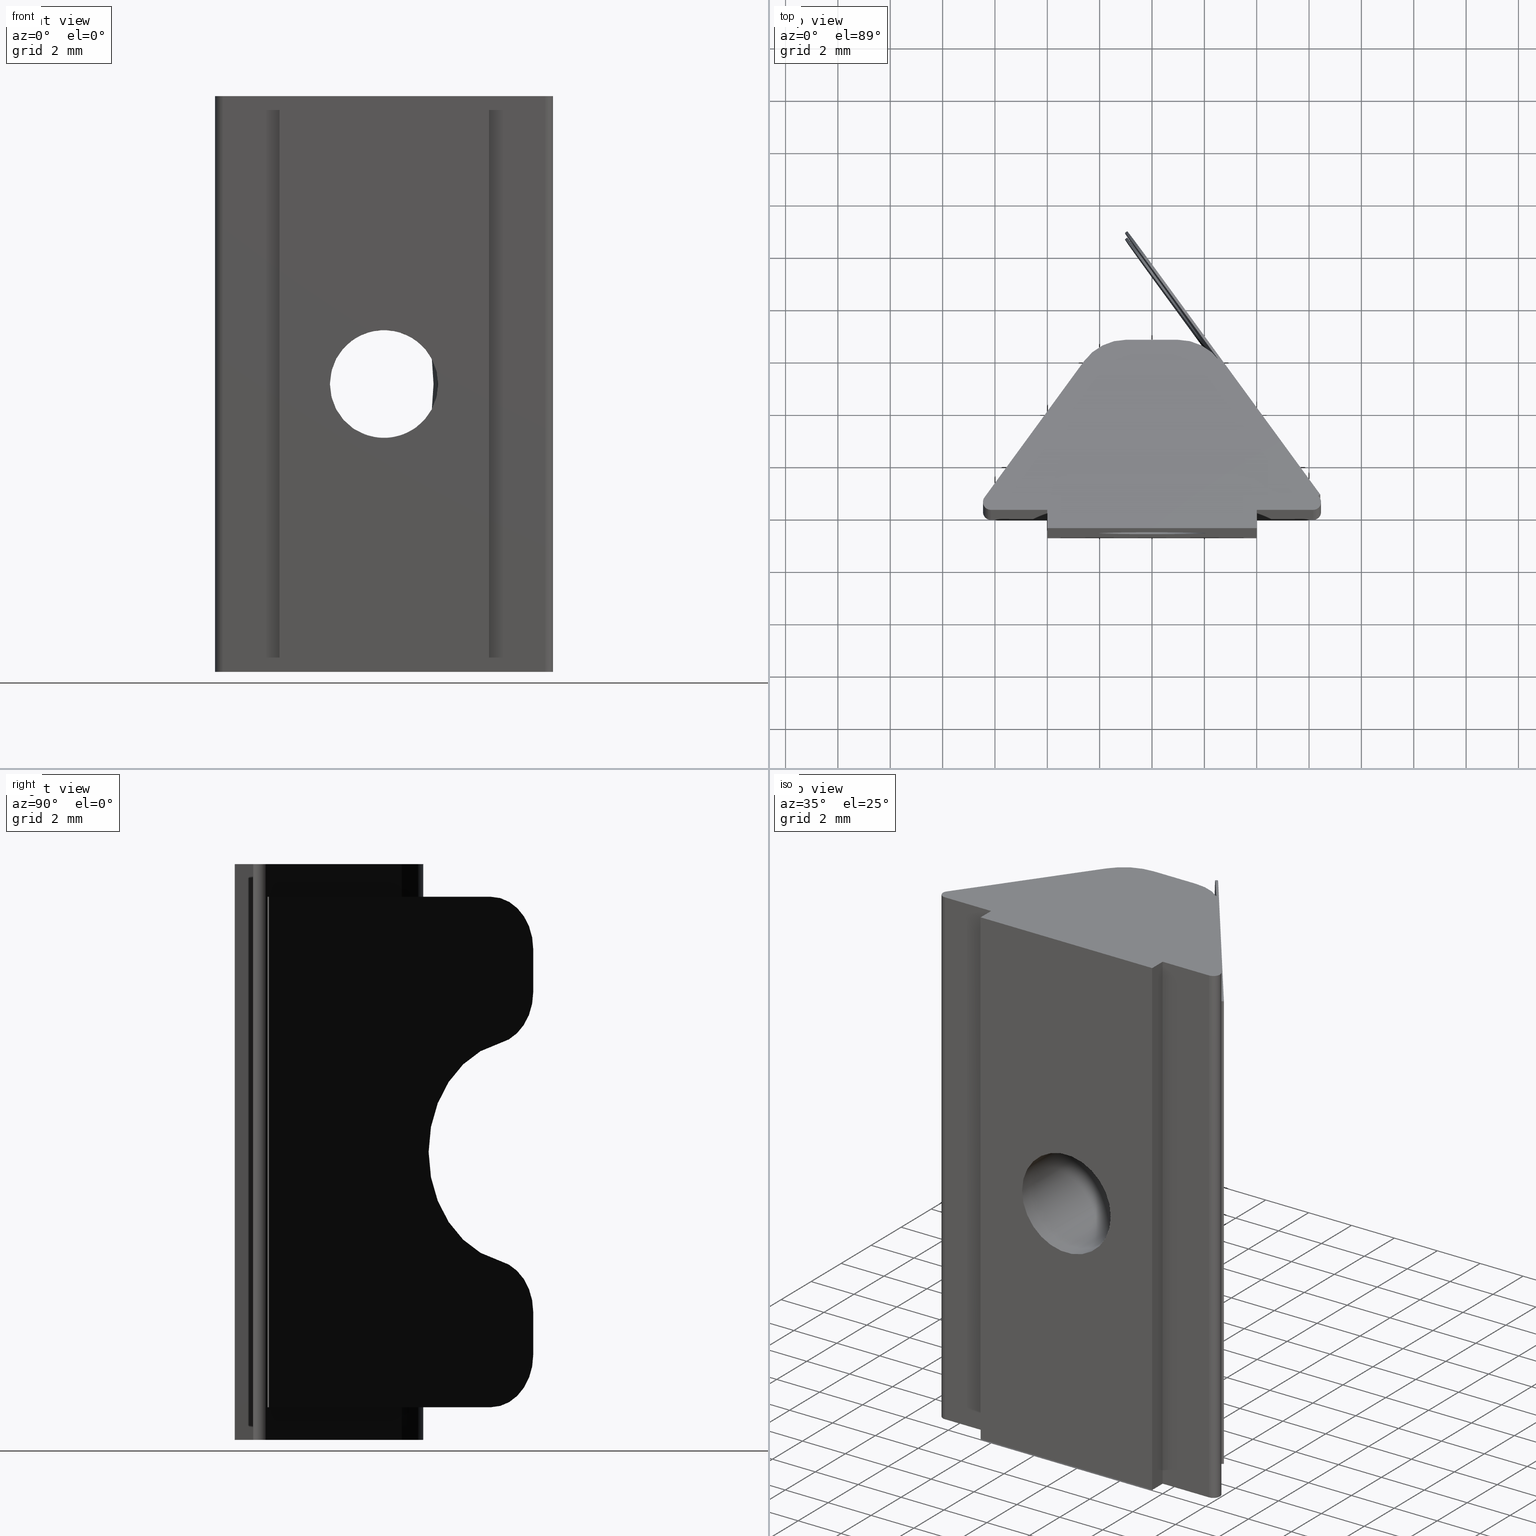
[diagram: canonical four-view strip — front | top / right | iso, engineering-drawing reading convention]
A machine part, canonical four-view strip (front | top / right | iso — engineering-drawing reading convention). The complete STEP part file that produces these views, byte-faithful:
ISO-10303-21;
HEADER;
/* Generated by software containing ST-Developer
 * from STEP Tools, Inc. (www.steptools.com) 
 */

FILE_DESCRIPTION(
/* description */ (' CURSORE M5 13.5X20 CAVA8 CON MOLLA'),
/* implementation_level */ '2;1');

FILE_NAME(
/* name */ 
'Q:\\Catalogo\\2_Accessori Dierre\\Per Download Web e catalogo cartace
o\\CATALOGO ELEMENTI ASSEMBLAGGIO\\PAGINA 11\\DDDCU0000068.stp',
/* time_stamp */ '2018-06-25T12:13:13+02:00',
/* author */ ('fzagni'),
/* organization */ (''),
/* preprocessor_version */ 'ST-DEVELOPER v16.1',
/* originating_system */ 'Autodesk Inventor 2016',
/* authorisation */ '');

FILE_SCHEMA (('AUTOMOTIVE_DESIGN { 1 0 10303 214 3 1 1 }'));
ENDSEC;

DATA;
#10=MECHANICAL_DESIGN_GEOMETRIC_PRESENTATION_REPRESENTATION('',(#13),#944);
#11=SHAPE_REPRESENTATION_RELATIONSHIP('SRR','None',#953,#12);
#12=ADVANCED_BREP_SHAPE_REPRESENTATION('',(#14),#943);
#13=STYLED_ITEM('',(#962),#14);
#14=MANIFOLD_SOLID_BREP('Solido1',#544);
#15=FACE_BOUND('',#87,.T.);
#16=FACE_BOUND('',#92,.T.);
#17=B_SPLINE_CURVE_WITH_KNOTS('',3,(#882,#883,#884,#885,#886,#887,#888,
#889,#890,#891,#892,#893,#894,#895,#896,#897,#898,#899,#900),
 .UNSPECIFIED.,.F.,.F.,(4,2,2,2,3,2,2,2,4),(1.86131742501699,1.8652302043375,
1.93290848191653,2.00436199081739,2.07581549971825,2.14726900861911,2.21872251751997,
2.286400795099,2.29031357441951),.UNSPECIFIED.);
#18=B_SPLINE_CURVE_WITH_KNOTS('',3,(#906,#907,#908,#909,#910,#911,#912,
#913,#914,#915,#916,#917,#918,#919,#920,#921,#922,#923),.UNSPECIFIED.,.F.,
 .F.,(4,2,2,2,2,2,2,2,4),(0.823409675157867,0.827322454478377,0.895000732057408,
0.966454240958267,1.03790774985913,1.10936125875998,1.18081476766084,1.24849304523987,
1.25240582456038),.UNSPECIFIED.);
#19=PLANE('',#549);
#20=PLANE('',#550);
#21=PLANE('',#561);
#22=PLANE('',#564);
#23=PLANE('',#565);
#24=PLANE('',#566);
#25=PLANE('',#567);
#26=PLANE('',#571);
#27=PLANE('',#572);
#28=PLANE('',#578);
#29=PLANE('',#579);
#30=PLANE('',#584);
#31=PLANE('',#589);
#32=PLANE('',#590);
#33=PLANE('',#591);
#34=PLANE('',#592);
#35=PLANE('',#593);
#36=PLANE('',#594);
#37=FACE_OUTER_BOUND('',#65,.T.);
#38=FACE_OUTER_BOUND('',#66,.T.);
#39=FACE_OUTER_BOUND('',#67,.T.);
#40=FACE_OUTER_BOUND('',#68,.T.);
#41=FACE_OUTER_BOUND('',#69,.T.);
#42=FACE_OUTER_BOUND('',#70,.T.);
#43=FACE_OUTER_BOUND('',#71,.T.);
#44=FACE_OUTER_BOUND('',#72,.T.);
#45=FACE_OUTER_BOUND('',#73,.T.);
#46=FACE_OUTER_BOUND('',#74,.T.);
#47=FACE_OUTER_BOUND('',#75,.T.);
#48=FACE_OUTER_BOUND('',#76,.T.);
#49=FACE_OUTER_BOUND('',#77,.T.);
#50=FACE_OUTER_BOUND('',#78,.T.);
#51=FACE_OUTER_BOUND('',#79,.T.);
#52=FACE_OUTER_BOUND('',#80,.T.);
#53=FACE_OUTER_BOUND('',#81,.T.);
#54=FACE_OUTER_BOUND('',#82,.T.);
#55=FACE_OUTER_BOUND('',#83,.T.);
#56=FACE_OUTER_BOUND('',#84,.T.);
#57=FACE_OUTER_BOUND('',#85,.T.);
#58=FACE_OUTER_BOUND('',#86,.T.);
#59=FACE_OUTER_BOUND('',#88,.T.);
#60=FACE_OUTER_BOUND('',#89,.T.);
#61=FACE_OUTER_BOUND('',#90,.T.);
#62=FACE_OUTER_BOUND('',#91,.T.);
#63=FACE_OUTER_BOUND('',#93,.T.);
#64=FACE_OUTER_BOUND('',#94,.T.);
#65=EDGE_LOOP('',(#352,#353,#354,#355));
#66=EDGE_LOOP('',(#356,#357,#358,#359));
#67=EDGE_LOOP('',(#360,#361,#362,#363,#364,#365,#366,#367,#368,#369));
#68=EDGE_LOOP('',(#370,#371,#372,#373));
#69=EDGE_LOOP('',(#374,#375,#376,#377));
#70=EDGE_LOOP('',(#378,#379,#380,#381));
#71=EDGE_LOOP('',(#382,#383,#384,#385));
#72=EDGE_LOOP('',(#386,#387,#388,#389));
#73=EDGE_LOOP('',(#390,#391,#392,#393,#394));
#74=EDGE_LOOP('',(#395,#396,#397,#398,#399));
#75=EDGE_LOOP('',(#400,#401,#402,#403));
#76=EDGE_LOOP('',(#404,#405,#406,#407,#408,#409,#410,#411,#412,#413));
#77=EDGE_LOOP('',(#414,#415,#416,#417));
#78=EDGE_LOOP('',(#418,#419,#420,#421,#422,#423,#424,#425));
#79=EDGE_LOOP('',(#426,#427,#428,#429,#430,#431,#432,#433,#434,#435,#436,
#437));
#80=EDGE_LOOP('',(#438,#439,#440,#441));
#81=EDGE_LOOP('',(#442,#443,#444,#445));
#82=EDGE_LOOP('',(#446,#447,#448,#449,#450,#451,#452,#453,#454,#455,#456,
#457));
#83=EDGE_LOOP('',(#458,#459,#460,#461,#462,#463));
#84=EDGE_LOOP('',(#464,#465,#466,#467,#468,#469,#470,#471));
#85=EDGE_LOOP('',(#472,#473,#474,#475));
#86=EDGE_LOOP('',(#476,#477,#478,#479));
#87=EDGE_LOOP('',(#480));
#88=EDGE_LOOP('',(#481,#482,#483,#484));
#89=EDGE_LOOP('',(#485,#486,#487,#488));
#90=EDGE_LOOP('',(#489,#490,#491,#492));
#91=EDGE_LOOP('',(#493,#494,#495,#496));
#92=EDGE_LOOP('',(#497));
#93=EDGE_LOOP('',(#498,#499,#500,#501));
#94=EDGE_LOOP('',(#502,#503,#504,#505));
#95=LINE('',#755,#149);
#96=LINE('',#758,#150);
#97=LINE('',#761,#151);
#98=LINE('',#763,#152);
#99=LINE('',#764,#153);
#100=LINE('',#767,#154);
#101=LINE('',#769,#155);
#102=LINE('',#771,#156);
#103=LINE('',#775,#157);
#104=LINE('',#783,#158);
#105=LINE('',#787,#159);
#106=LINE('',#792,#160);
#107=LINE('',#795,#161);
#108=LINE('',#796,#162);
#109=LINE('',#800,#163);
#110=LINE('',#803,#164);
#111=LINE('',#805,#165);
#112=LINE('',#806,#166);
#113=LINE('',#809,#167);
#114=LINE('',#811,#168);
#115=LINE('',#812,#169);
#116=LINE('',#814,#170);
#117=LINE('',#815,#171);
#118=LINE('',#822,#172);
#119=LINE('',#825,#173);
#120=LINE('',#828,#174);
#121=LINE('',#829,#175);
#122=LINE('',#831,#176);
#123=LINE('',#832,#177);
#124=LINE('',#835,#178);
#125=LINE('',#837,#179);
#126=LINE('',#839,#180);
#127=LINE('',#841,#181);
#128=LINE('',#843,#182);
#129=LINE('',#847,#183);
#130=LINE('',#851,#184);
#131=LINE('',#857,#185);
#132=LINE('',#858,#186);
#133=LINE('',#861,#187);
#134=LINE('',#862,#188);
#135=LINE('',#867,#189);
#136=LINE('',#870,#190);
#137=LINE('',#872,#191);
#138=LINE('',#874,#192);
#139=LINE('',#876,#193);
#140=LINE('',#877,#194);
#141=LINE('',#880,#195);
#142=LINE('',#901,#196);
#143=LINE('',#904,#197);
#144=LINE('',#924,#198);
#145=LINE('',#933,#199);
#146=LINE('',#935,#200);
#147=LINE('',#937,#201);
#148=LINE('',#939,#202);
#149=VECTOR('',#601,0.0999999999999983);
#150=VECTOR('',#604,0.0999999999999983);
#151=VECTOR('',#607,1.63669483830555);
#152=VECTOR('',#608,0.0999999999999983);
#153=VECTOR('',#609,1.63669483830555);
#154=VECTOR('',#612,4.14756660525515);
#155=VECTOR('',#613,19.5);
#156=VECTOR('',#614,4.14756660525515);
#157=VECTOR('',#617,1.63669483830556);
#158=VECTOR('',#626,0.0999999999999983);
#159=VECTOR('',#631,0.0999999999999983);
#160=VECTOR('',#638,0.0999999999999983);
#161=VECTOR('',#641,0.0999999999999983);
#162=VECTOR('',#642,1.63669483830556);
#163=VECTOR('',#647,0.099999999999999);
#164=VECTOR('',#650,6.35243339474486);
#165=VECTOR('',#651,0.0999999999999997);
#166=VECTOR('',#652,10.5);
#167=VECTOR('',#655,10.5);
#168=VECTOR('',#656,0.0999999999999997);
#169=VECTOR('',#657,6.35243339474485);
#170=VECTOR('',#660,19.5);
#171=VECTOR('',#661,19.5);
#172=VECTOR('',#668,22.);
#173=VECTOR('',#671,22.);
#174=VECTOR('',#674,1.25);
#175=VECTOR('',#675,6.44424747615688);
#176=VECTOR('',#676,6.44424747615688);
#177=VECTOR('',#677,1.25);
#178=VECTOR('',#680,2.15920210335143);
#179=VECTOR('',#681,0.699999999999999);
#180=VECTOR('',#682,8.);
#181=VECTOR('',#683,0.699999999999999);
#182=VECTOR('',#684,2.15920210335143);
#183=VECTOR('',#687,6.44424747615688);
#184=VECTOR('',#690,1.96884855750627);
#185=VECTOR('',#697,22.);
#186=VECTOR('',#698,22.);
#187=VECTOR('',#701,6.44424747615688);
#188=VECTOR('',#702,22.);
#189=VECTOR('',#707,1.96884855750627);
#190=VECTOR('',#710,2.15920210335143);
#191=VECTOR('',#711,0.699999999999999);
#192=VECTOR('',#712,8.);
#193=VECTOR('',#713,0.699999999999999);
#194=VECTOR('',#714,2.15920210335143);
#195=VECTOR('',#717,9.18247480364057);
#196=VECTOR('',#718,9.18247480364057);
#197=VECTOR('',#721,9.18247480364057);
#198=VECTOR('',#722,9.18247480364057);
#199=VECTOR('',#737,22.);
#200=VECTOR('',#740,22.);
#201=VECTOR('',#743,22.);
#202=VECTOR('',#746,22.);
#203=CIRCLE('',#547,2.);
#204=CIRCLE('',#548,2.);
#205=CIRCLE('',#551,2.);
#206=CIRCLE('',#552,2.);
#207=CIRCLE('',#553,4.25);
#208=CIRCLE('',#554,2.);
#209=CIRCLE('',#556,2.);
#210=CIRCLE('',#558,4.25);
#211=CIRCLE('',#560,2.);
#212=CIRCLE('',#563,2.);
#213=CIRCLE('',#569,0.3);
#214=CIRCLE('',#570,0.3);
#215=CIRCLE('',#573,0.3);
#216=CIRCLE('',#574,2.);
#217=CIRCLE('',#575,2.);
#218=CIRCLE('',#577,0.3);
#219=CIRCLE('',#580,2.);
#220=CIRCLE('',#581,2.);
#221=CIRCLE('',#585,2.067);
#222=CIRCLE('',#587,2.067);
#223=CIRCLE('',#588,2.067);
#224=VERTEX_POINT('',#751);
#225=VERTEX_POINT('',#752);
#226=VERTEX_POINT('',#754);
#227=VERTEX_POINT('',#756);
#228=VERTEX_POINT('',#760);
#229=VERTEX_POINT('',#762);
#230=VERTEX_POINT('',#766);
#231=VERTEX_POINT('',#768);
#232=VERTEX_POINT('',#770);
#233=VERTEX_POINT('',#772);
#234=VERTEX_POINT('',#774);
#235=VERTEX_POINT('',#776);
#236=VERTEX_POINT('',#778);
#237=VERTEX_POINT('',#782);
#238=VERTEX_POINT('',#786);
#239=VERTEX_POINT('',#790);
#240=VERTEX_POINT('',#794);
#241=VERTEX_POINT('',#798);
#242=VERTEX_POINT('',#802);
#243=VERTEX_POINT('',#804);
#244=VERTEX_POINT('',#808);
#245=VERTEX_POINT('',#810);
#246=VERTEX_POINT('',#818);
#247=VERTEX_POINT('',#819);
#248=VERTEX_POINT('',#821);
#249=VERTEX_POINT('',#823);
#250=VERTEX_POINT('',#827);
#251=VERTEX_POINT('',#830);
#252=VERTEX_POINT('',#834);
#253=VERTEX_POINT('',#836);
#254=VERTEX_POINT('',#838);
#255=VERTEX_POINT('',#840);
#256=VERTEX_POINT('',#842);
#257=VERTEX_POINT('',#844);
#258=VERTEX_POINT('',#846);
#259=VERTEX_POINT('',#848);
#260=VERTEX_POINT('',#850);
#261=VERTEX_POINT('',#854);
#262=VERTEX_POINT('',#855);
#263=VERTEX_POINT('',#860);
#264=VERTEX_POINT('',#864);
#265=VERTEX_POINT('',#866);
#266=VERTEX_POINT('',#869);
#267=VERTEX_POINT('',#871);
#268=VERTEX_POINT('',#873);
#269=VERTEX_POINT('',#875);
#270=VERTEX_POINT('',#879);
#271=VERTEX_POINT('',#881);
#272=VERTEX_POINT('',#903);
#273=VERTEX_POINT('',#905);
#274=VERTEX_POINT('',#929);
#275=EDGE_CURVE('',#224,#225,#203,.T.);
#276=EDGE_CURVE('',#225,#226,#95,.T.);
#277=EDGE_CURVE('',#226,#227,#204,.T.);
#278=EDGE_CURVE('',#227,#224,#96,.T.);
#279=EDGE_CURVE('',#228,#227,#97,.T.);
#280=EDGE_CURVE('',#229,#228,#98,.T.);
#281=EDGE_CURVE('',#224,#229,#99,.T.);
#282=EDGE_CURVE('',#226,#230,#100,.T.);
#283=EDGE_CURVE('',#231,#230,#101,.T.);
#284=EDGE_CURVE('',#231,#232,#102,.T.);
#285=EDGE_CURVE('',#233,#232,#205,.T.);
#286=EDGE_CURVE('',#233,#234,#103,.T.);
#287=EDGE_CURVE('',#235,#234,#206,.T.);
#288=EDGE_CURVE('',#235,#236,#207,.T.);
#289=EDGE_CURVE('',#228,#236,#208,.T.);
#290=EDGE_CURVE('',#236,#237,#104,.T.);
#291=EDGE_CURVE('',#237,#229,#209,.T.);
#292=EDGE_CURVE('',#238,#235,#105,.T.);
#293=EDGE_CURVE('',#237,#238,#210,.T.);
#294=EDGE_CURVE('',#239,#238,#211,.T.);
#295=EDGE_CURVE('',#234,#239,#106,.T.);
#296=EDGE_CURVE('',#240,#233,#107,.T.);
#297=EDGE_CURVE('',#239,#240,#108,.T.);
#298=EDGE_CURVE('',#241,#240,#212,.T.);
#299=EDGE_CURVE('',#232,#241,#109,.T.);
#300=EDGE_CURVE('',#242,#231,#110,.T.);
#301=EDGE_CURVE('',#242,#243,#111,.T.);
#302=EDGE_CURVE('',#241,#243,#112,.T.);
#303=EDGE_CURVE('',#244,#225,#113,.T.);
#304=EDGE_CURVE('',#245,#244,#114,.T.);
#305=EDGE_CURVE('',#230,#245,#115,.T.);
#306=EDGE_CURVE('',#245,#242,#116,.T.);
#307=EDGE_CURVE('',#243,#244,#117,.T.);
#308=EDGE_CURVE('',#246,#247,#213,.T.);
#309=EDGE_CURVE('',#247,#248,#118,.T.);
#310=EDGE_CURVE('',#248,#249,#214,.T.);
#311=EDGE_CURVE('',#249,#246,#119,.T.);
#312=EDGE_CURVE('',#250,#231,#120,.T.);
#313=EDGE_CURVE('',#246,#250,#121,.T.);
#314=EDGE_CURVE('',#249,#251,#122,.T.);
#315=EDGE_CURVE('',#230,#251,#123,.T.);
#316=EDGE_CURVE('',#252,#248,#124,.T.);
#317=EDGE_CURVE('',#253,#252,#125,.T.);
#318=EDGE_CURVE('',#254,#253,#126,.T.);
#319=EDGE_CURVE('',#255,#254,#127,.T.);
#320=EDGE_CURVE('',#256,#255,#128,.T.);
#321=EDGE_CURVE('',#257,#256,#215,.T.);
#322=EDGE_CURVE('',#258,#257,#129,.T.);
#323=EDGE_CURVE('',#259,#258,#216,.T.);
#324=EDGE_CURVE('',#260,#259,#130,.T.);
#325=EDGE_CURVE('',#251,#260,#217,.T.);
#326=EDGE_CURVE('',#261,#262,#218,.T.);
#327=EDGE_CURVE('',#262,#257,#131,.T.);
#328=EDGE_CURVE('',#256,#261,#132,.T.);
#329=EDGE_CURVE('',#263,#262,#133,.T.);
#330=EDGE_CURVE('',#258,#263,#134,.T.);
#331=EDGE_CURVE('',#264,#250,#219,.T.);
#332=EDGE_CURVE('',#264,#265,#135,.T.);
#333=EDGE_CURVE('',#263,#265,#220,.T.);
#334=EDGE_CURVE('',#261,#266,#136,.T.);
#335=EDGE_CURVE('',#266,#267,#137,.T.);
#336=EDGE_CURVE('',#267,#268,#138,.T.);
#337=EDGE_CURVE('',#268,#269,#139,.T.);
#338=EDGE_CURVE('',#269,#247,#140,.T.);
#339=EDGE_CURVE('',#265,#270,#141,.T.);
#340=EDGE_CURVE('',#270,#271,#17,.T.);
#341=EDGE_CURVE('',#259,#271,#142,.T.);
#342=EDGE_CURVE('',#260,#272,#143,.T.);
#343=EDGE_CURVE('',#272,#273,#18,.T.);
#344=EDGE_CURVE('',#273,#264,#144,.T.);
#345=EDGE_CURVE('',#271,#272,#221,.T.);
#346=EDGE_CURVE('',#273,#270,#222,.T.);
#347=EDGE_CURVE('',#274,#274,#223,.T.);
#348=EDGE_CURVE('',#252,#269,#145,.T.);
#349=EDGE_CURVE('',#253,#268,#146,.T.);
#350=EDGE_CURVE('',#254,#267,#147,.T.);
#351=EDGE_CURVE('',#255,#266,#148,.T.);
#352=ORIENTED_EDGE('',*,*,#275,.T.);
#353=ORIENTED_EDGE('',*,*,#276,.T.);
#354=ORIENTED_EDGE('',*,*,#277,.T.);
#355=ORIENTED_EDGE('',*,*,#278,.T.);
#356=ORIENTED_EDGE('',*,*,#278,.F.);
#357=ORIENTED_EDGE('',*,*,#279,.F.);
#358=ORIENTED_EDGE('',*,*,#280,.F.);
#359=ORIENTED_EDGE('',*,*,#281,.F.);
#360=ORIENTED_EDGE('',*,*,#277,.F.);
#361=ORIENTED_EDGE('',*,*,#282,.T.);
#362=ORIENTED_EDGE('',*,*,#283,.F.);
#363=ORIENTED_EDGE('',*,*,#284,.T.);
#364=ORIENTED_EDGE('',*,*,#285,.F.);
#365=ORIENTED_EDGE('',*,*,#286,.T.);
#366=ORIENTED_EDGE('',*,*,#287,.F.);
#367=ORIENTED_EDGE('',*,*,#288,.T.);
#368=ORIENTED_EDGE('',*,*,#289,.F.);
#369=ORIENTED_EDGE('',*,*,#279,.T.);
#370=ORIENTED_EDGE('',*,*,#289,.T.);
#371=ORIENTED_EDGE('',*,*,#290,.T.);
#372=ORIENTED_EDGE('',*,*,#291,.T.);
#373=ORIENTED_EDGE('',*,*,#280,.T.);
#374=ORIENTED_EDGE('',*,*,#290,.F.);
#375=ORIENTED_EDGE('',*,*,#288,.F.);
#376=ORIENTED_EDGE('',*,*,#292,.F.);
#377=ORIENTED_EDGE('',*,*,#293,.F.);
#378=ORIENTED_EDGE('',*,*,#294,.T.);
#379=ORIENTED_EDGE('',*,*,#292,.T.);
#380=ORIENTED_EDGE('',*,*,#287,.T.);
#381=ORIENTED_EDGE('',*,*,#295,.T.);
#382=ORIENTED_EDGE('',*,*,#295,.F.);
#383=ORIENTED_EDGE('',*,*,#286,.F.);
#384=ORIENTED_EDGE('',*,*,#296,.F.);
#385=ORIENTED_EDGE('',*,*,#297,.F.);
#386=ORIENTED_EDGE('',*,*,#298,.T.);
#387=ORIENTED_EDGE('',*,*,#296,.T.);
#388=ORIENTED_EDGE('',*,*,#285,.T.);
#389=ORIENTED_EDGE('',*,*,#299,.T.);
#390=ORIENTED_EDGE('',*,*,#299,.F.);
#391=ORIENTED_EDGE('',*,*,#284,.F.);
#392=ORIENTED_EDGE('',*,*,#300,.F.);
#393=ORIENTED_EDGE('',*,*,#301,.T.);
#394=ORIENTED_EDGE('',*,*,#302,.F.);
#395=ORIENTED_EDGE('',*,*,#276,.F.);
#396=ORIENTED_EDGE('',*,*,#303,.F.);
#397=ORIENTED_EDGE('',*,*,#304,.F.);
#398=ORIENTED_EDGE('',*,*,#305,.F.);
#399=ORIENTED_EDGE('',*,*,#282,.F.);
#400=ORIENTED_EDGE('',*,*,#306,.F.);
#401=ORIENTED_EDGE('',*,*,#304,.T.);
#402=ORIENTED_EDGE('',*,*,#307,.F.);
#403=ORIENTED_EDGE('',*,*,#301,.F.);
#404=ORIENTED_EDGE('',*,*,#275,.F.);
#405=ORIENTED_EDGE('',*,*,#281,.T.);
#406=ORIENTED_EDGE('',*,*,#291,.F.);
#407=ORIENTED_EDGE('',*,*,#293,.T.);
#408=ORIENTED_EDGE('',*,*,#294,.F.);
#409=ORIENTED_EDGE('',*,*,#297,.T.);
#410=ORIENTED_EDGE('',*,*,#298,.F.);
#411=ORIENTED_EDGE('',*,*,#302,.T.);
#412=ORIENTED_EDGE('',*,*,#307,.T.);
#413=ORIENTED_EDGE('',*,*,#303,.T.);
#414=ORIENTED_EDGE('',*,*,#308,.T.);
#415=ORIENTED_EDGE('',*,*,#309,.T.);
#416=ORIENTED_EDGE('',*,*,#310,.T.);
#417=ORIENTED_EDGE('',*,*,#311,.T.);
#418=ORIENTED_EDGE('',*,*,#300,.T.);
#419=ORIENTED_EDGE('',*,*,#312,.F.);
#420=ORIENTED_EDGE('',*,*,#313,.F.);
#421=ORIENTED_EDGE('',*,*,#311,.F.);
#422=ORIENTED_EDGE('',*,*,#314,.T.);
#423=ORIENTED_EDGE('',*,*,#315,.F.);
#424=ORIENTED_EDGE('',*,*,#305,.T.);
#425=ORIENTED_EDGE('',*,*,#306,.T.);
#426=ORIENTED_EDGE('',*,*,#310,.F.);
#427=ORIENTED_EDGE('',*,*,#316,.F.);
#428=ORIENTED_EDGE('',*,*,#317,.F.);
#429=ORIENTED_EDGE('',*,*,#318,.F.);
#430=ORIENTED_EDGE('',*,*,#319,.F.);
#431=ORIENTED_EDGE('',*,*,#320,.F.);
#432=ORIENTED_EDGE('',*,*,#321,.F.);
#433=ORIENTED_EDGE('',*,*,#322,.F.);
#434=ORIENTED_EDGE('',*,*,#323,.F.);
#435=ORIENTED_EDGE('',*,*,#324,.F.);
#436=ORIENTED_EDGE('',*,*,#325,.F.);
#437=ORIENTED_EDGE('',*,*,#314,.F.);
#438=ORIENTED_EDGE('',*,*,#326,.T.);
#439=ORIENTED_EDGE('',*,*,#327,.T.);
#440=ORIENTED_EDGE('',*,*,#321,.T.);
#441=ORIENTED_EDGE('',*,*,#328,.T.);
#442=ORIENTED_EDGE('',*,*,#327,.F.);
#443=ORIENTED_EDGE('',*,*,#329,.F.);
#444=ORIENTED_EDGE('',*,*,#330,.F.);
#445=ORIENTED_EDGE('',*,*,#322,.T.);
#446=ORIENTED_EDGE('',*,*,#308,.F.);
#447=ORIENTED_EDGE('',*,*,#313,.T.);
#448=ORIENTED_EDGE('',*,*,#331,.F.);
#449=ORIENTED_EDGE('',*,*,#332,.T.);
#450=ORIENTED_EDGE('',*,*,#333,.F.);
#451=ORIENTED_EDGE('',*,*,#329,.T.);
#452=ORIENTED_EDGE('',*,*,#326,.F.);
#453=ORIENTED_EDGE('',*,*,#334,.T.);
#454=ORIENTED_EDGE('',*,*,#335,.T.);
#455=ORIENTED_EDGE('',*,*,#336,.T.);
#456=ORIENTED_EDGE('',*,*,#337,.T.);
#457=ORIENTED_EDGE('',*,*,#338,.T.);
#458=ORIENTED_EDGE('',*,*,#333,.T.);
#459=ORIENTED_EDGE('',*,*,#339,.T.);
#460=ORIENTED_EDGE('',*,*,#340,.T.);
#461=ORIENTED_EDGE('',*,*,#341,.F.);
#462=ORIENTED_EDGE('',*,*,#323,.T.);
#463=ORIENTED_EDGE('',*,*,#330,.T.);
#464=ORIENTED_EDGE('',*,*,#331,.T.);
#465=ORIENTED_EDGE('',*,*,#312,.T.);
#466=ORIENTED_EDGE('',*,*,#283,.T.);
#467=ORIENTED_EDGE('',*,*,#315,.T.);
#468=ORIENTED_EDGE('',*,*,#325,.T.);
#469=ORIENTED_EDGE('',*,*,#342,.T.);
#470=ORIENTED_EDGE('',*,*,#343,.T.);
#471=ORIENTED_EDGE('',*,*,#344,.T.);
#472=ORIENTED_EDGE('',*,*,#341,.T.);
#473=ORIENTED_EDGE('',*,*,#345,.T.);
#474=ORIENTED_EDGE('',*,*,#342,.F.);
#475=ORIENTED_EDGE('',*,*,#324,.T.);
#476=ORIENTED_EDGE('',*,*,#340,.F.);
#477=ORIENTED_EDGE('',*,*,#346,.F.);
#478=ORIENTED_EDGE('',*,*,#343,.F.);
#479=ORIENTED_EDGE('',*,*,#345,.F.);
#480=ORIENTED_EDGE('',*,*,#347,.F.);
#481=ORIENTED_EDGE('',*,*,#339,.F.);
#482=ORIENTED_EDGE('',*,*,#332,.F.);
#483=ORIENTED_EDGE('',*,*,#344,.F.);
#484=ORIENTED_EDGE('',*,*,#346,.T.);
#485=ORIENTED_EDGE('',*,*,#309,.F.);
#486=ORIENTED_EDGE('',*,*,#338,.F.);
#487=ORIENTED_EDGE('',*,*,#348,.F.);
#488=ORIENTED_EDGE('',*,*,#316,.T.);
#489=ORIENTED_EDGE('',*,*,#317,.T.);
#490=ORIENTED_EDGE('',*,*,#348,.T.);
#491=ORIENTED_EDGE('',*,*,#337,.F.);
#492=ORIENTED_EDGE('',*,*,#349,.F.);
#493=ORIENTED_EDGE('',*,*,#318,.T.);
#494=ORIENTED_EDGE('',*,*,#349,.T.);
#495=ORIENTED_EDGE('',*,*,#336,.F.);
#496=ORIENTED_EDGE('',*,*,#350,.F.);
#497=ORIENTED_EDGE('',*,*,#347,.T.);
#498=ORIENTED_EDGE('',*,*,#319,.T.);
#499=ORIENTED_EDGE('',*,*,#350,.T.);
#500=ORIENTED_EDGE('',*,*,#335,.F.);
#501=ORIENTED_EDGE('',*,*,#351,.F.);
#502=ORIENTED_EDGE('',*,*,#328,.F.);
#503=ORIENTED_EDGE('',*,*,#320,.T.);
#504=ORIENTED_EDGE('',*,*,#351,.T.);
#505=ORIENTED_EDGE('',*,*,#334,.F.);
#506=CYLINDRICAL_SURFACE('',#546,2.);
#507=CYLINDRICAL_SURFACE('',#555,2.);
#508=CYLINDRICAL_SURFACE('',#557,4.25);
#509=CYLINDRICAL_SURFACE('',#559,2.);
#510=CYLINDRICAL_SURFACE('',#562,2.);
#511=CYLINDRICAL_SURFACE('',#568,0.3);
#512=CYLINDRICAL_SURFACE('',#576,0.3);
#513=CYLINDRICAL_SURFACE('',#582,2.);
#514=CYLINDRICAL_SURFACE('',#583,2.);
#515=CYLINDRICAL_SURFACE('',#586,2.067);
#516=ADVANCED_FACE('',(#37),#506,.T.);
#517=ADVANCED_FACE('',(#38),#19,.T.);
#518=ADVANCED_FACE('',(#39),#20,.F.);
#519=ADVANCED_FACE('',(#40),#507,.T.);
#520=ADVANCED_FACE('',(#41),#508,.F.);
#521=ADVANCED_FACE('',(#42),#509,.T.);
#522=ADVANCED_FACE('',(#43),#21,.T.);
#523=ADVANCED_FACE('',(#44),#510,.T.);
#524=ADVANCED_FACE('',(#45),#22,.T.);
#525=ADVANCED_FACE('',(#46),#23,.T.);
#526=ADVANCED_FACE('',(#47),#24,.T.);
#527=ADVANCED_FACE('',(#48),#25,.T.);
#528=ADVANCED_FACE('',(#49),#511,.T.);
#529=ADVANCED_FACE('',(#50),#26,.T.);
#530=ADVANCED_FACE('',(#51),#27,.F.);
#531=ADVANCED_FACE('',(#52),#512,.T.);
#532=ADVANCED_FACE('',(#53),#28,.T.);
#533=ADVANCED_FACE('',(#54),#29,.T.);
#534=ADVANCED_FACE('',(#55),#513,.T.);
#535=ADVANCED_FACE('',(#56),#514,.T.);
#536=ADVANCED_FACE('',(#57),#30,.T.);
#537=ADVANCED_FACE('',(#58,#15),#515,.F.);
#538=ADVANCED_FACE('',(#59),#31,.T.);
#539=ADVANCED_FACE('',(#60),#32,.T.);
#540=ADVANCED_FACE('',(#61),#33,.T.);
#541=ADVANCED_FACE('',(#62,#16),#34,.T.);
#542=ADVANCED_FACE('',(#63),#35,.T.);
#543=ADVANCED_FACE('',(#64),#36,.T.);
#544=CLOSED_SHELL('',(#516,#517,#518,#519,#520,#521,#522,#523,#524,#525,
#526,#527,#528,#529,#530,#531,#532,#533,#534,#535,#536,#537,#538,#539,#540,
#541,#542,#543));
#545=AXIS2_PLACEMENT_3D('placement',#749,#595,#596);
#546=AXIS2_PLACEMENT_3D('',#750,#597,#598);
#547=AXIS2_PLACEMENT_3D('',#753,#599,#600);
#548=AXIS2_PLACEMENT_3D('',#757,#602,#603);
#549=AXIS2_PLACEMENT_3D('',#759,#605,#606);
#550=AXIS2_PLACEMENT_3D('',#765,#610,#611);
#551=AXIS2_PLACEMENT_3D('',#773,#615,#616);
#552=AXIS2_PLACEMENT_3D('',#777,#618,#619);
#553=AXIS2_PLACEMENT_3D('',#779,#620,#621);
#554=AXIS2_PLACEMENT_3D('',#780,#622,#623);
#555=AXIS2_PLACEMENT_3D('',#781,#624,#625);
#556=AXIS2_PLACEMENT_3D('',#784,#627,#628);
#557=AXIS2_PLACEMENT_3D('',#785,#629,#630);
#558=AXIS2_PLACEMENT_3D('',#788,#632,#633);
#559=AXIS2_PLACEMENT_3D('',#789,#634,#635);
#560=AXIS2_PLACEMENT_3D('',#791,#636,#637);
#561=AXIS2_PLACEMENT_3D('',#793,#639,#640);
#562=AXIS2_PLACEMENT_3D('',#797,#643,#644);
#563=AXIS2_PLACEMENT_3D('',#799,#645,#646);
#564=AXIS2_PLACEMENT_3D('',#801,#648,#649);
#565=AXIS2_PLACEMENT_3D('',#807,#653,#654);
#566=AXIS2_PLACEMENT_3D('',#813,#658,#659);
#567=AXIS2_PLACEMENT_3D('',#816,#662,#663);
#568=AXIS2_PLACEMENT_3D('',#817,#664,#665);
#569=AXIS2_PLACEMENT_3D('',#820,#666,#667);
#570=AXIS2_PLACEMENT_3D('',#824,#669,#670);
#571=AXIS2_PLACEMENT_3D('',#826,#672,#673);
#572=AXIS2_PLACEMENT_3D('',#833,#678,#679);
#573=AXIS2_PLACEMENT_3D('',#845,#685,#686);
#574=AXIS2_PLACEMENT_3D('',#849,#688,#689);
#575=AXIS2_PLACEMENT_3D('',#852,#691,#692);
#576=AXIS2_PLACEMENT_3D('',#853,#693,#694);
#577=AXIS2_PLACEMENT_3D('',#856,#695,#696);
#578=AXIS2_PLACEMENT_3D('',#859,#699,#700);
#579=AXIS2_PLACEMENT_3D('',#863,#703,#704);
#580=AXIS2_PLACEMENT_3D('',#865,#705,#706);
#581=AXIS2_PLACEMENT_3D('',#868,#708,#709);
#582=AXIS2_PLACEMENT_3D('',#878,#715,#716);
#583=AXIS2_PLACEMENT_3D('',#902,#719,#720);
#584=AXIS2_PLACEMENT_3D('',#925,#723,#724);
#585=AXIS2_PLACEMENT_3D('',#926,#725,#726);
#586=AXIS2_PLACEMENT_3D('',#927,#727,#728);
#587=AXIS2_PLACEMENT_3D('',#928,#729,#730);
#588=AXIS2_PLACEMENT_3D('',#930,#731,#732);
#589=AXIS2_PLACEMENT_3D('',#931,#733,#734);
#590=AXIS2_PLACEMENT_3D('',#932,#735,#736);
#591=AXIS2_PLACEMENT_3D('',#934,#738,#739);
#592=AXIS2_PLACEMENT_3D('',#936,#741,#742);
#593=AXIS2_PLACEMENT_3D('',#938,#744,#745);
#594=AXIS2_PLACEMENT_3D('',#940,#747,#748);
#595=DIRECTION('axis',(0.,0.,1.));
#596=DIRECTION('refdir',(1.,0.,0.));
#597=DIRECTION('center_axis',(0.807391122257897,0.590016589342312,0.));
#598=DIRECTION('ref_axis',(-0.417204731336507,0.570911737618376,-0.707106781186547));
#599=DIRECTION('center_axis',(-0.807391122257898,-0.59001658934231,2.29359244537343E-18));
#600=DIRECTION('ref_axis',(-0.417204731336507,0.570911737618376,-0.707106781186547));
#601=DIRECTION('',(-0.807391122257897,-0.590016589342312,0.));
#602=DIRECTION('center_axis',(0.807391122257898,0.59001658934231,-2.29359244537343E-18));
#603=DIRECTION('ref_axis',(-0.417204731336507,0.570911737618376,-0.707106781186547));
#604=DIRECTION('',(0.807391122257897,0.590016589342312,0.));
#605=DIRECTION('center_axis',(-0.590016589342312,0.807391122257897,6.05576195250085E-16));
#606=DIRECTION('ref_axis',(3.5527136788005E-16,-5.32907051820075E-16,1.));
#607=DIRECTION('',(-3.57300001308348E-16,4.88936843895634E-16,-1.));
#608=DIRECTION('',(-0.807391122257897,-0.590016589342311,-2.66026840753601E-16));
#609=DIRECTION('',(3.57300001308348E-16,-4.88936843895634E-16,1.));
#610=DIRECTION('center_axis',(0.807391122257898,0.59001658934231,-2.29359244537343E-18));
#611=DIRECTION('ref_axis',(0.,0.,-1.));
#612=DIRECTION('',(0.59001658934231,-0.807391122257898,0.));
#613=DIRECTION('',(0.,0.,-1.));
#614=DIRECTION('',(-0.59001658934231,0.807391122257898,2.66453525910038E-16));
#615=DIRECTION('center_axis',(0.807391122257898,0.59001658934231,-2.29359244537343E-18));
#616=DIRECTION('ref_axis',(-0.417204731336507,0.570911737618376,0.707106781186547));
#617=DIRECTION('',(-2.38200000872232E-16,3.25957895930423E-16,-1.));
#618=DIRECTION('center_axis',(0.807391122257898,0.59001658934231,-2.29359244537343E-18));
#619=DIRECTION('ref_axis',(0.590016589342312,-0.807391122257897,0.));
#620=DIRECTION('center_axis',(0.807391122257898,0.59001658934231,0.));
#621=DIRECTION('ref_axis',(0.,0.,1.));
#622=DIRECTION('center_axis',(0.807391122257898,0.59001658934231,-2.29359244537343E-18));
#623=DIRECTION('ref_axis',(0.590016589342312,-0.807391122257897,-5.55111512312579E-16));
#624=DIRECTION('center_axis',(0.807391122257897,0.590016589342312,2.66026840753601E-16));
#625=DIRECTION('ref_axis',(0.590016589342312,-0.807391122257897,-5.55111512312579E-16));
#626=DIRECTION('',(0.807391122257897,0.590016589342311,2.66026840753601E-16));
#627=DIRECTION('center_axis',(-0.807391122257898,-0.59001658934231,2.29359244537343E-18));
#628=DIRECTION('ref_axis',(0.590016589342312,-0.807391122257897,-5.55111512312579E-16));
#629=DIRECTION('center_axis',(0.807391122257897,0.590016589342312,0.));
#630=DIRECTION('ref_axis',(0.,0.,1.));
#631=DIRECTION('',(-0.807391122257897,-0.590016589342312,-2.21689033961334E-17));
#632=DIRECTION('center_axis',(-0.807391122257898,-0.59001658934231,0.));
#633=DIRECTION('ref_axis',(0.,0.,1.));
#634=DIRECTION('center_axis',(-0.807391122257897,-0.590016589342312,-2.21689033961334E-17));
#635=DIRECTION('ref_axis',(0.590016589342312,-0.807391122257897,0.));
#636=DIRECTION('center_axis',(-0.807391122257898,-0.59001658934231,2.29359244537343E-18));
#637=DIRECTION('ref_axis',(0.590016589342312,-0.807391122257897,0.));
#638=DIRECTION('',(0.807391122257897,0.590016589342312,2.21689033961334E-17));
#639=DIRECTION('center_axis',(-0.590016589342312,0.807391122257897,4.03717463500057E-16));
#640=DIRECTION('ref_axis',(2.44249065417534E-16,-3.5527136788005E-16,1.));
#641=DIRECTION('',(-0.807391122257897,-0.590016589342312,0.));
#642=DIRECTION('',(2.38200000872232E-16,-3.25957895930423E-16,1.));
#643=DIRECTION('center_axis',(0.807391122257897,0.590016589342312,0.));
#644=DIRECTION('ref_axis',(-0.417204731336507,0.570911737618376,0.707106781186547));
#645=DIRECTION('center_axis',(-0.807391122257898,-0.59001658934231,2.29359244537343E-18));
#646=DIRECTION('ref_axis',(-0.417204731336507,0.570911737618376,0.707106781186547));
#647=DIRECTION('',(0.807391122257897,0.590016589342312,0.));
#648=DIRECTION('center_axis',(1.57212000575674E-16,-2.15132211314079E-16,
1.));
#649=DIRECTION('ref_axis',(0.59001658934231,-0.807391122257898,-3.5527136788005E-16));
#650=DIRECTION('',(-0.59001658934231,0.807391122257898,2.66453525910038E-16));
#651=DIRECTION('',(0.807391122257897,0.590016589342312,0.));
#652=DIRECTION('',(0.59001658934231,-0.807391122257898,-2.66453525910038E-16));
#653=DIRECTION('center_axis',(0.,0.,-1.));
#654=DIRECTION('ref_axis',(-0.59001658934231,0.807391122257898,0.));
#655=DIRECTION('',(-0.59001658934231,0.807391122257898,0.));
#656=DIRECTION('',(0.807391122257897,0.590016589342312,0.));
#657=DIRECTION('',(0.59001658934231,-0.807391122257898,0.));
#658=DIRECTION('center_axis',(0.590016589342312,-0.807391122257897,-1.13869028166683E-16));
#659=DIRECTION('ref_axis',(-8.88178419700125E-17,8.88178419700125E-17,-1.));
#660=DIRECTION('',(6.71846156306296E-17,-9.19368424419141E-17,1.));
#661=DIRECTION('',(-6.71846156306296E-17,9.19368424419141E-17,-1.));
#662=DIRECTION('center_axis',(0.807391122257898,0.59001658934231,-2.29359244537343E-18));
#663=DIRECTION('ref_axis',(0.,0.,-1.));
#664=DIRECTION('center_axis',(0.,0.,1.));
#665=DIRECTION('ref_axis',(0.891632376414828,-0.452760096882274,0.));
#666=DIRECTION('center_axis',(0.,0.,-1.));
#667=DIRECTION('ref_axis',(0.891632376414828,-0.452760096882274,0.));
#668=DIRECTION('',(0.,0.,-1.));
#669=DIRECTION('center_axis',(0.,0.,1.));
#670=DIRECTION('ref_axis',(0.891632376414828,-0.452760096882274,0.));
#671=DIRECTION('',(0.,0.,1.));
#672=DIRECTION('center_axis',(0.807391122257898,0.59001658934231,0.));
#673=DIRECTION('ref_axis',(-0.59001658934231,0.807391122257898,0.));
#674=DIRECTION('',(0.,0.,-1.));
#675=DIRECTION('',(-0.59001658934231,0.807391122257898,0.));
#676=DIRECTION('',(-0.59001658934231,0.807391122257898,0.));
#677=DIRECTION('',(0.,0.,-1.));
#678=DIRECTION('center_axis',(0.,0.,1.));
#679=DIRECTION('ref_axis',(1.,0.,0.));
#680=DIRECTION('',(1.,-6.30808536718839E-18,0.));
#681=DIRECTION('',(0.,1.,0.));
#682=DIRECTION('',(1.,0.,0.));
#683=DIRECTION('',(-7.93016446160827E-16,-1.,0.));
#684=DIRECTION('',(1.,6.30808536718839E-18,0.));
#685=DIRECTION('center_axis',(0.,0.,1.));
#686=DIRECTION('ref_axis',(-0.89163237641483,-0.452760096882271,0.));
#687=DIRECTION('',(-0.59001658934231,-0.807391122257898,0.));
#688=DIRECTION('center_axis',(0.,0.,1.));
#689=DIRECTION('ref_axis',(-0.452760096882273,0.891632376414829,0.));
#690=DIRECTION('',(-1.,0.,0.));
#691=DIRECTION('center_axis',(0.,0.,1.));
#692=DIRECTION('ref_axis',(0.452760096882273,0.891632376414829,0.));
#693=DIRECTION('center_axis',(0.,0.,1.));
#694=DIRECTION('ref_axis',(-0.89163237641483,-0.452760096882271,0.));
#695=DIRECTION('center_axis',(0.,0.,-1.));
#696=DIRECTION('ref_axis',(-0.89163237641483,-0.452760096882271,0.));
#697=DIRECTION('',(0.,0.,-1.));
#698=DIRECTION('',(0.,0.,1.));
#699=DIRECTION('center_axis',(-0.807391122257898,0.59001658934231,0.));
#700=DIRECTION('ref_axis',(-0.59001658934231,-0.807391122257898,0.));
#701=DIRECTION('',(-0.59001658934231,-0.807391122257898,0.));
#702=DIRECTION('',(0.,0.,1.));
#703=DIRECTION('center_axis',(0.,0.,1.));
#704=DIRECTION('ref_axis',(1.,0.,0.));
#705=DIRECTION('center_axis',(0.,0.,-1.));
#706=DIRECTION('ref_axis',(0.452760096882273,0.891632376414829,0.));
#707=DIRECTION('',(-1.,0.,0.));
#708=DIRECTION('center_axis',(0.,0.,-1.));
#709=DIRECTION('ref_axis',(-0.452760096882273,0.891632376414829,0.));
#710=DIRECTION('',(1.,6.30808536718839E-18,0.));
#711=DIRECTION('',(-7.93016446160827E-16,-1.,0.));
#712=DIRECTION('',(1.,0.,0.));
#713=DIRECTION('',(0.,1.,0.));
#714=DIRECTION('',(1.,-6.30808536718839E-18,0.));
#715=DIRECTION('center_axis',(0.,0.,1.));
#716=DIRECTION('ref_axis',(-0.452760096882273,0.891632376414829,0.));
#717=DIRECTION('',(0.,0.,-1.));
#718=DIRECTION('',(0.,0.,1.));
#719=DIRECTION('center_axis',(0.,0.,1.));
#720=DIRECTION('ref_axis',(0.452760096882273,0.891632376414829,0.));
#721=DIRECTION('',(0.,0.,1.));
#722=DIRECTION('',(0.,0.,1.));
#723=DIRECTION('center_axis',(0.,1.,0.));
#724=DIRECTION('ref_axis',(-1.,0.,0.));
#725=DIRECTION('center_axis',(0.,-1.,0.));
#726=DIRECTION('ref_axis',(1.,0.,0.));
#727=DIRECTION('center_axis',(0.,-1.,0.));
#728=DIRECTION('ref_axis',(1.,0.,0.));
#729=DIRECTION('center_axis',(0.,-1.,0.));
#730=DIRECTION('ref_axis',(1.,0.,0.));
#731=DIRECTION('center_axis',(0.,1.,0.));
#732=DIRECTION('ref_axis',(1.,0.,0.));
#733=DIRECTION('center_axis',(0.,1.,0.));
#734=DIRECTION('ref_axis',(-1.,0.,0.));
#735=DIRECTION('center_axis',(-6.30808536718839E-18,-1.,0.));
#736=DIRECTION('ref_axis',(1.,-6.30808536718839E-18,0.));
#737=DIRECTION('',(0.,0.,1.));
#738=DIRECTION('center_axis',(1.,0.,0.));
#739=DIRECTION('ref_axis',(0.,1.,0.));
#740=DIRECTION('',(0.,0.,1.));
#741=DIRECTION('center_axis',(0.,-1.,0.));
#742=DIRECTION('ref_axis',(1.,0.,0.));
#743=DIRECTION('',(0.,0.,1.));
#744=DIRECTION('center_axis',(-1.,7.93016446160827E-16,0.));
#745=DIRECTION('ref_axis',(-7.54951656745106E-16,-1.,0.));
#746=DIRECTION('',(0.,0.,1.));
#747=DIRECTION('center_axis',(6.30808536718839E-18,-1.,0.));
#748=DIRECTION('ref_axis',(1.,6.30808536718839E-18,0.));
#749=CARTESIAN_POINT('',(0.,0.,0.));
#750=CARTESIAN_POINT('Origin',(0.152073420766219,9.02874163474095,3.25));
#751=CARTESIAN_POINT('',(-0.947220645692606,10.702525538191,3.25));
#752=CARTESIAN_POINT('',(0.232812532992014,9.08774329367519,1.25));
#753=CARTESIAN_POINT('Origin',(0.232812532992007,9.08774329367518,3.25));
#754=CARTESIAN_POINT('',(0.152073420766226,9.02874163474096,1.25));
#755=CARTESIAN_POINT('',(0.152073420766219,9.02874163474095,1.25));
#756=CARTESIAN_POINT('',(-1.02795975791839,10.6435238792568,3.25));
#757=CARTESIAN_POINT('Origin',(0.152073420766219,9.02874163474095,3.25));
#758=CARTESIAN_POINT('',(-1.0279597579184,10.6435238792567,3.25));
#759=CARTESIAN_POINT('Origin',(-1.0279597579184,10.6435238792568,1.25));
#760=CARTESIAN_POINT('',(-1.02795975791839,10.6435238792567,4.88669483830555));
#761=CARTESIAN_POINT('',(-1.02795975791839,10.6435238792567,6.75));
#762=CARTESIAN_POINT('',(-0.947220645692605,10.702525538191,4.88669483830555));
#763=CARTESIAN_POINT('',(-1.02795975791839,10.6435238792567,4.88669483830555));
#764=CARTESIAN_POINT('',(-0.947220645692605,10.702525538191,6.75));
#765=CARTESIAN_POINT('Origin',(2.80409340434374,5.39966165721383,11.));
#766=CARTESIAN_POINT('',(2.59920652326893,5.68003317868462,1.25));
#767=CARTESIAN_POINT('',(-1.02795975791839,10.6435238792568,1.25));
#768=CARTESIAN_POINT('',(2.59920652326893,5.68003317868462,20.75));
#769=CARTESIAN_POINT('',(2.59920652326893,5.68003317868462,0.));
#770=CARTESIAN_POINT('',(0.152073420766228,9.02874163474095,20.75));
#771=CARTESIAN_POINT('',(6.34724760886048,0.551134851033024,20.75));
#772=CARTESIAN_POINT('',(-1.02795975791839,10.6435238792567,18.75));
#773=CARTESIAN_POINT('Origin',(0.15207342076622,9.02874163474095,18.75));
#774=CARTESIAN_POINT('',(-1.02795975791839,10.6435238792567,17.1133051616944));
#775=CARTESIAN_POINT('',(-1.02795975791839,10.6435238792567,20.75));
#776=CARTESIAN_POINT('',(-0.0933734804001737,9.36461634160024,15.1570475099522));
#777=CARTESIAN_POINT('Origin',(0.15207342076622,9.02874163474095,17.1133051616944));
#778=CARTESIAN_POINT('',(-0.0933734804001755,9.36461634160024,6.84295249004777));
#779=CARTESIAN_POINT('Origin',(-0.614948145378778,10.0783500936762,11.));
#780=CARTESIAN_POINT('Origin',(0.152073420766219,9.02874163474095,4.88669483830555));
#781=CARTESIAN_POINT('Origin',(0.152073420766229,9.02874163474096,4.88669483830555));
#782=CARTESIAN_POINT('',(-0.0126343681743871,9.42361800053447,6.84295249004777));
#783=CARTESIAN_POINT('',(-0.0933734804001731,9.36461634160024,6.84295249004777));
#784=CARTESIAN_POINT('Origin',(0.232812532992008,9.08774329367518,4.88669483830555));
#785=CARTESIAN_POINT('Origin',(-0.614948145378778,10.0783500936762,11.));
#786=CARTESIAN_POINT('',(-0.0126343681743853,9.42361800053447,15.1570475099522));
#787=CARTESIAN_POINT('',(-0.093373480400173,9.36461634160024,15.1570475099522));
#788=CARTESIAN_POINT('Origin',(-0.53420903315299,10.1373517526105,11.));
#789=CARTESIAN_POINT('Origin',(0.152073420766229,9.02874163474095,17.1133051616944));
#790=CARTESIAN_POINT('',(-0.947220645692604,10.702525538191,17.1133051616944));
#791=CARTESIAN_POINT('Origin',(0.232812532992009,9.08774329367518,17.1133051616944));
#792=CARTESIAN_POINT('',(-1.02795975791839,10.6435238792567,17.1133051616944));
#793=CARTESIAN_POINT('Origin',(-1.02795975791839,10.6435238792567,15.25));
#794=CARTESIAN_POINT('',(-0.947220645692604,10.702525538191,18.75));
#795=CARTESIAN_POINT('',(-1.02795975791839,10.6435238792567,18.75));
#796=CARTESIAN_POINT('',(-0.947220645692604,10.702525538191,20.75));
#797=CARTESIAN_POINT('Origin',(0.152073420766231,9.02874163474095,18.75));
#798=CARTESIAN_POINT('',(0.232812532992016,9.08774329367518,20.75));
#799=CARTESIAN_POINT('Origin',(0.232812532992009,9.08774329367518,18.75));
#800=CARTESIAN_POINT('',(0.152073420766231,9.02874163474095,20.75));
#801=CARTESIAN_POINT('Origin',(-1.02795975791839,10.6435238792567,20.75));
#802=CARTESIAN_POINT('',(6.34724760886048,0.551134851033024,20.75));
#803=CARTESIAN_POINT('',(2.86102012104081,5.32176193962837,20.75));
#804=CARTESIAN_POINT('',(6.42798672108627,0.610136509967255,20.75));
#805=CARTESIAN_POINT('',(6.34724760886048,0.551134851033024,20.75));
#806=CARTESIAN_POINT('',(6.42798672108627,0.610136509967255,20.75));
#807=CARTESIAN_POINT('Origin',(6.34724760886048,0.551134851033024,1.25));
#808=CARTESIAN_POINT('',(6.42798672108627,0.610136509967257,1.25));
#809=CARTESIAN_POINT('',(-0.947220645692606,10.702525538191,1.25));
#810=CARTESIAN_POINT('',(6.34724760886048,0.551134851033026,1.25));
#811=CARTESIAN_POINT('',(6.34724760886048,0.551134851033026,1.25));
#812=CARTESIAN_POINT('',(6.54862380443024,0.275567425516512,1.25));
#813=CARTESIAN_POINT('Origin',(6.34724760886048,0.551134851033024,20.75));
#814=CARTESIAN_POINT('',(6.34724760886048,0.551134851033025,10.375));
#815=CARTESIAN_POINT('',(6.42798672108627,0.610136509967257,1.25));
#816=CARTESIAN_POINT('Origin',(2.88483251656953,5.45866331614806,11.));
#817=CARTESIAN_POINT('Origin',(6.15920210335143,0.3,0.));
#818=CARTESIAN_POINT('',(6.4014194400288,0.477004976802693,22.));
#819=CARTESIAN_POINT('',(6.15920210335143,3.72680356681451E-18,22.));
#820=CARTESIAN_POINT('Origin',(6.15920210335143,0.3,22.));
#821=CARTESIAN_POINT('',(6.15920210335143,3.72680356681451E-18,0.));
#822=CARTESIAN_POINT('',(6.15920210335143,0.,0.));
#823=CARTESIAN_POINT('',(6.4014194400288,0.477004976802693,0.));
#824=CARTESIAN_POINT('Origin',(6.15920210335143,0.3,0.));
#825=CARTESIAN_POINT('',(6.4014194400288,0.477004976802693,0.));
#826=CARTESIAN_POINT('Origin',(6.75,0.,0.));
#827=CARTESIAN_POINT('',(2.59920652326893,5.68003317868462,22.));
#828=CARTESIAN_POINT('',(2.59920652326893,5.68003317868462,0.));
#829=CARTESIAN_POINT('',(6.75,0.,22.));
#830=CARTESIAN_POINT('',(2.59920652326893,5.68003317868462,0.));
#831=CARTESIAN_POINT('',(6.75,0.,0.));
#832=CARTESIAN_POINT('',(2.59920652326893,5.68003317868462,0.));
#833=CARTESIAN_POINT('Origin',(-1.18948245321398E-16,2.06389923886447,0.));
#834=CARTESIAN_POINT('',(4.,1.73472347597681E-17,0.));
#835=CARTESIAN_POINT('',(4.,1.73472347597681E-17,0.));
#836=CARTESIAN_POINT('',(4.,-0.699999999999999,0.));
#837=CARTESIAN_POINT('',(4.,-0.699999999999999,0.));
#838=CARTESIAN_POINT('',(-4.,-0.699999999999999,0.));
#839=CARTESIAN_POINT('',(-4.,-0.699999999999999,0.));
#840=CARTESIAN_POINT('',(-4.,1.73472347597681E-17,0.));
#841=CARTESIAN_POINT('',(-4.,1.73472347597681E-17,0.));
#842=CARTESIAN_POINT('',(-6.15920210335143,3.7268035668145E-18,0.));
#843=CARTESIAN_POINT('',(-6.75,0.,0.));
#844=CARTESIAN_POINT('',(-6.4014194400288,0.477004976802693,0.));
#845=CARTESIAN_POINT('Origin',(-6.15920210335143,0.3,0.));
#846=CARTESIAN_POINT('',(-2.59920652326893,5.68003317868462,0.));
#847=CARTESIAN_POINT('',(-2.,6.5,0.));
#848=CARTESIAN_POINT('',(-0.984424278753134,6.5,0.));
#849=CARTESIAN_POINT('Origin',(-0.984424278753134,4.5,0.));
#850=CARTESIAN_POINT('',(0.984424278753135,6.5,0.));
#851=CARTESIAN_POINT('',(2.,6.5,0.));
#852=CARTESIAN_POINT('Origin',(0.984424278753135,4.5,0.));
#853=CARTESIAN_POINT('Origin',(-6.15920210335143,0.3,0.));
#854=CARTESIAN_POINT('',(-6.15920210335143,3.7268035668145E-18,22.));
#855=CARTESIAN_POINT('',(-6.4014194400288,0.477004976802693,22.));
#856=CARTESIAN_POINT('Origin',(-6.15920210335143,0.3,22.));
#857=CARTESIAN_POINT('',(-6.4014194400288,0.477004976802692,0.));
#858=CARTESIAN_POINT('',(-6.15920210335143,0.,0.));
#859=CARTESIAN_POINT('Origin',(-2.,6.5,0.));
#860=CARTESIAN_POINT('',(-2.59920652326893,5.68003317868462,22.));
#861=CARTESIAN_POINT('',(-2.,6.5,22.));
#862=CARTESIAN_POINT('',(-2.59920652326893,5.68003317868462,0.));
#863=CARTESIAN_POINT('Origin',(0.,2.06389923886447,22.));
#864=CARTESIAN_POINT('',(0.984424278753135,6.5,22.));
#865=CARTESIAN_POINT('Origin',(0.984424278753135,4.5,22.));
#866=CARTESIAN_POINT('',(-0.984424278753134,6.5,22.));
#867=CARTESIAN_POINT('',(2.,6.5,22.));
#868=CARTESIAN_POINT('Origin',(-0.984424278753134,4.5,22.));
#869=CARTESIAN_POINT('',(-4.,1.73472347597681E-17,22.));
#870=CARTESIAN_POINT('',(-6.75,0.,22.));
#871=CARTESIAN_POINT('',(-4.,-0.699999999999999,22.));
#872=CARTESIAN_POINT('',(-4.,1.73472347597681E-17,22.));
#873=CARTESIAN_POINT('',(4.,-0.699999999999999,22.));
#874=CARTESIAN_POINT('',(-4.,-0.699999999999999,22.));
#875=CARTESIAN_POINT('',(4.,1.73472347597681E-17,22.));
#876=CARTESIAN_POINT('',(4.,-0.699999999999999,22.));
#877=CARTESIAN_POINT('',(4.,1.73472347597681E-17,22.));
#878=CARTESIAN_POINT('Origin',(-0.984424278753134,4.5,0.));
#879=CARTESIAN_POINT('',(-0.984424278753134,6.5,12.8175251963594));
#880=CARTESIAN_POINT('',(-0.984424278753134,6.5,0.));
#881=CARTESIAN_POINT('',(-0.984424278753134,6.5,9.18247480364057));
#882=CARTESIAN_POINT('Ctrl Pts',(-0.984424278753134,6.5,12.8175251963594));
#883=CARTESIAN_POINT('Ctrl Pts',(-0.996020297091587,6.5,12.8112444570266));
#884=CARTESIAN_POINT('Ctrl Pts',(-1.00749567100125,6.49989912242261,12.8048854656537));
#885=CARTESIAN_POINT('Ctrl Pts',(-1.21510578086432,6.49632580636784,12.6872724438622));
#886=CARTESIAN_POINT('Ctrl Pts',(-1.42167327662954,6.45744658489841,12.5166738977715));
#887=CARTESIAN_POINT('Ctrl Pts',(-1.71856597584826,6.36719911563973,12.172007154397));
#888=CARTESIAN_POINT('Ctrl Pts',(-1.84922147788704,6.30608427881599,11.9564976737985));
#889=CARTESIAN_POINT('Ctrl Pts',(-2.02348529532173,6.21177357712414,11.4899110681427));
#890=CARTESIAN_POINT('Ctrl Pts',(-2.067,6.18167470331418,11.2381783630029));
#891=CARTESIAN_POINT('Ctrl Pts',(-2.067,6.18167470331418,11.));
#892=CARTESIAN_POINT('Ctrl Pts',(-2.067,6.18167470331418,10.7618216369971));
#893=CARTESIAN_POINT('Ctrl Pts',(-2.02348529532173,6.21177357712414,10.5100889318573));
#894=CARTESIAN_POINT('Ctrl Pts',(-1.84922147788704,6.30608427881599,10.0435023262015));
#895=CARTESIAN_POINT('Ctrl Pts',(-1.71856597584826,6.36719911563973,9.82799284560304));
#896=CARTESIAN_POINT('Ctrl Pts',(-1.42167327662954,6.45744658489841,9.4833261022285));
#897=CARTESIAN_POINT('Ctrl Pts',(-1.21510578086432,6.49632580636784,9.31272755613783));
#898=CARTESIAN_POINT('Ctrl Pts',(-1.00749567100125,6.49989912242261,9.19511453434627));
#899=CARTESIAN_POINT('Ctrl Pts',(-0.996020297091585,6.5,9.18875554297343));
#900=CARTESIAN_POINT('Ctrl Pts',(-0.984424278753131,6.5,9.18247480364057));
#901=CARTESIAN_POINT('',(-0.984424278753134,6.5,0.));
#902=CARTESIAN_POINT('Origin',(0.984424278753135,4.5,0.));
#903=CARTESIAN_POINT('',(0.984424278753135,6.5,9.18247480364057));
#904=CARTESIAN_POINT('',(0.984424278753135,6.5,0.));
#905=CARTESIAN_POINT('',(0.984424278753135,6.5,12.8175251963594));
#906=CARTESIAN_POINT('Ctrl Pts',(0.984424278753135,6.5,9.18247480364057));
#907=CARTESIAN_POINT('Ctrl Pts',(0.996020297091588,6.5,9.18875554297344));
#908=CARTESIAN_POINT('Ctrl Pts',(1.00749567100125,6.49989912242261,9.19511453434627));
#909=CARTESIAN_POINT('Ctrl Pts',(1.21510578086432,6.49632580636784,9.31272755613783));
#910=CARTESIAN_POINT('Ctrl Pts',(1.42167327662954,6.45744658489841,9.4833261022285));
#911=CARTESIAN_POINT('Ctrl Pts',(1.71856597584826,6.36719911563973,9.82799284560304));
#912=CARTESIAN_POINT('Ctrl Pts',(1.84922147788704,6.30608427881599,10.0435023262015));
#913=CARTESIAN_POINT('Ctrl Pts',(2.02348529532173,6.21177357712414,10.5100889318573));
#914=CARTESIAN_POINT('Ctrl Pts',(2.067,6.18167470331418,10.7618216369971));
#915=CARTESIAN_POINT('Ctrl Pts',(2.067,6.18167470331418,11.2381783630029));
#916=CARTESIAN_POINT('Ctrl Pts',(2.02348529532173,6.21177357712414,11.4899110681427));
#917=CARTESIAN_POINT('Ctrl Pts',(1.84922147788704,6.30608427881599,11.9564976737985));
#918=CARTESIAN_POINT('Ctrl Pts',(1.71856597584826,6.36719911563973,12.172007154397));
#919=CARTESIAN_POINT('Ctrl Pts',(1.42167327662954,6.45744658489841,12.5166738977715));
#920=CARTESIAN_POINT('Ctrl Pts',(1.21510578086432,6.49632580636784,12.6872724438622));
#921=CARTESIAN_POINT('Ctrl Pts',(1.00749567100125,6.49989912242261,12.8048854656537));
#922=CARTESIAN_POINT('Ctrl Pts',(0.996020297091588,6.5,12.8112444570266));
#923=CARTESIAN_POINT('Ctrl Pts',(0.984424278753135,6.5,12.8175251963594));
#924=CARTESIAN_POINT('',(0.984424278753135,6.5,0.));
#925=CARTESIAN_POINT('Origin',(2.,6.5,0.));
#926=CARTESIAN_POINT('Origin',(0.,6.5,11.));
#927=CARTESIAN_POINT('Origin',(0.,26.0972013464093,11.));
#928=CARTESIAN_POINT('Origin',(0.,6.5,11.));
#929=CARTESIAN_POINT('',(2.067,-0.699999999999999,11.));
#930=CARTESIAN_POINT('Origin',(0.,-0.699999999999998,11.));
#931=CARTESIAN_POINT('Origin',(2.,6.5,0.));
#932=CARTESIAN_POINT('Origin',(4.,1.73472347597681E-17,0.));
#933=CARTESIAN_POINT('',(4.,1.73472347597681E-17,0.));
#934=CARTESIAN_POINT('Origin',(4.,-0.699999999999999,0.));
#935=CARTESIAN_POINT('',(4.,-0.699999999999999,0.));
#936=CARTESIAN_POINT('Origin',(-4.,-0.699999999999999,0.));
#937=CARTESIAN_POINT('',(-4.,-0.699999999999999,0.));
#938=CARTESIAN_POINT('Origin',(-4.,1.73472347597681E-17,0.));
#939=CARTESIAN_POINT('',(-4.,1.73472347597681E-17,0.));
#940=CARTESIAN_POINT('Origin',(-6.75,0.,0.));
#941=UNCERTAINTY_MEASURE_WITH_UNIT(LENGTH_MEASURE(0.01),#945,
'DISTANCE_ACCURACY_VALUE',
'Maximum model space distance between geometric entities at asserted c
onnectivities');
#942=UNCERTAINTY_MEASURE_WITH_UNIT(LENGTH_MEASURE(1.E-6),#945,
'DISTANCE_ACCURACY_VALUE',
'Maximum model space distance between geometric entities at asserted c
onnectivities');
#943=(
GEOMETRIC_REPRESENTATION_CONTEXT(3)
GLOBAL_UNCERTAINTY_ASSIGNED_CONTEXT((#941))
GLOBAL_UNIT_ASSIGNED_CONTEXT((#945,#948,#946))
REPRESENTATION_CONTEXT('','3D')
);
#944=(
GEOMETRIC_REPRESENTATION_CONTEXT(3)
GLOBAL_UNCERTAINTY_ASSIGNED_CONTEXT((#942))
GLOBAL_UNIT_ASSIGNED_CONTEXT((#945,#948,#946))
REPRESENTATION_CONTEXT('','3D')
);
#945=(
LENGTH_UNIT()
NAMED_UNIT(*)
SI_UNIT(.MILLI.,.METRE.)
);
#946=(
NAMED_UNIT(*)
SI_UNIT($,.STERADIAN.)
SOLID_ANGLE_UNIT()
);
#947=DIMENSIONAL_EXPONENTS(0.,0.,0.,0.,0.,0.,0.);
#948=(
CONVERSION_BASED_UNIT('degree',#950)
NAMED_UNIT(#947)
PLANE_ANGLE_UNIT()
);
#949=(
NAMED_UNIT(*)
PLANE_ANGLE_UNIT()
SI_UNIT($,.RADIAN.)
);
#950=PLANE_ANGLE_MEASURE_WITH_UNIT(PLANE_ANGLE_MEASURE(0.01745329252),#949);
#951=SHAPE_DEFINITION_REPRESENTATION(#952,#953);
#952=PRODUCT_DEFINITION_SHAPE('',$,#955);
#953=SHAPE_REPRESENTATION('',(#545),#943);
#954=PRODUCT_DEFINITION_CONTEXT('part definition',#959,'design');
#955=PRODUCT_DEFINITION('DDDCU0000068','DDDCU0000068',#956,#954);
#956=PRODUCT_DEFINITION_FORMATION('','A',#961);
#957=PRODUCT_RELATED_PRODUCT_CATEGORY('DDDCU0000068','DDDCU0000068',(#961));
#958=APPLICATION_PROTOCOL_DEFINITION('international standard',
'automotive_design',2009,#959);
#959=APPLICATION_CONTEXT(
'Core Data for Automotive Mechanical Design Process');
#960=PRODUCT_CONTEXT('part definition',#959,'mechanical');
#961=PRODUCT('DDDCU0000068','DDDCU0000068',$,(#960));
#962=PRESENTATION_STYLE_ASSIGNMENT((#963));
#963=SURFACE_STYLE_USAGE(.BOTH.,#964);
#964=SURFACE_SIDE_STYLE('',(#965));
#965=SURFACE_STYLE_FILL_AREA(#966);
#966=FILL_AREA_STYLE('',(#967));
#967=FILL_AREA_STYLE_COLOUR('',#968);
#968=COLOUR_RGB('',0.83921568627451,0.886274509803922,0.854901960784314);
ENDSEC;
END-ISO-10303-21;
